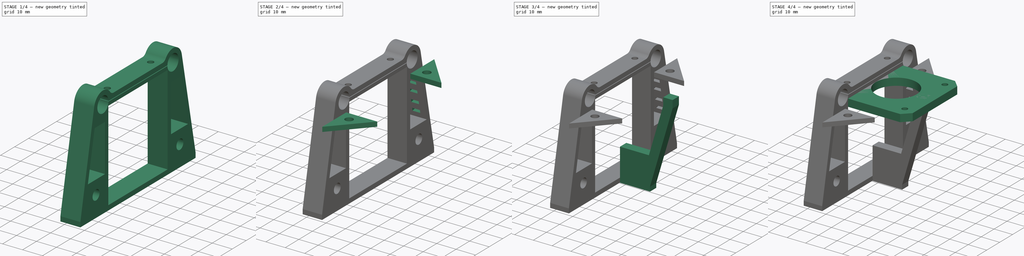
[diagram: build sequence overview — one tinted view per stage of 4, left to right]
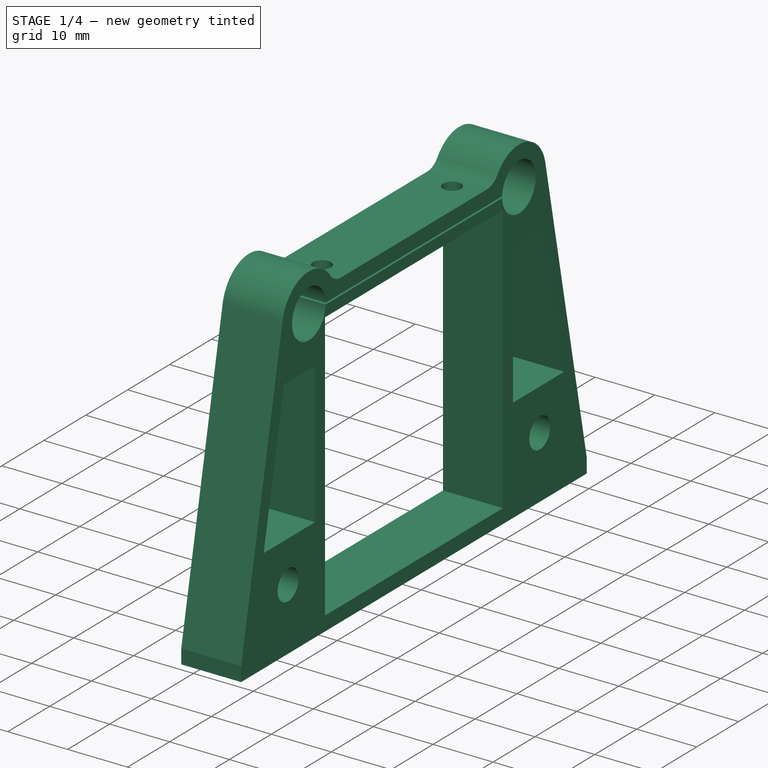
[diagram: stage 1 of 4 — iso view after this stage's code; geometry added in this stage tinted green]
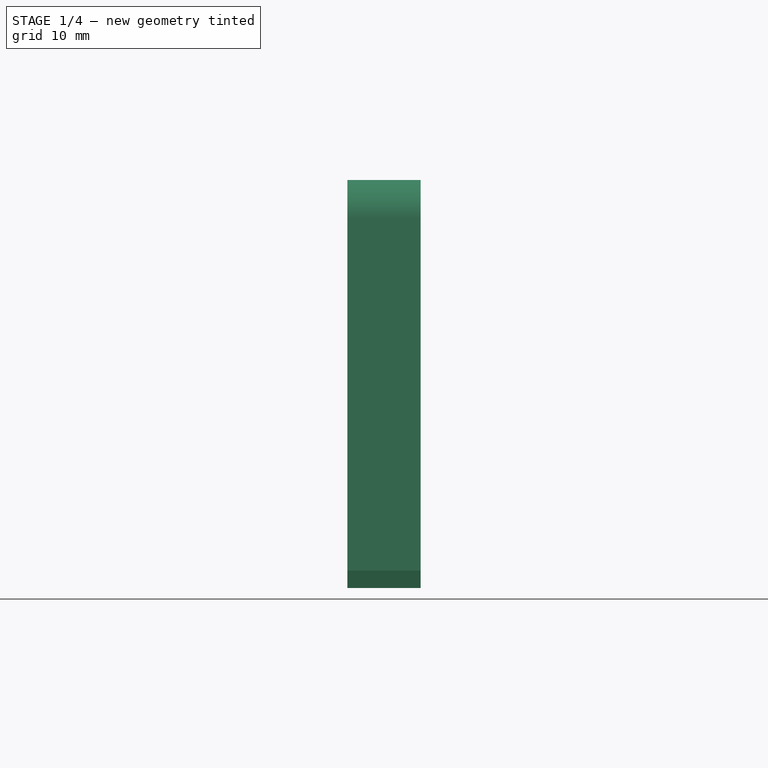
[diagram: stage 1 of 4 — front view after this stage's code; geometry added in this stage tinted green]
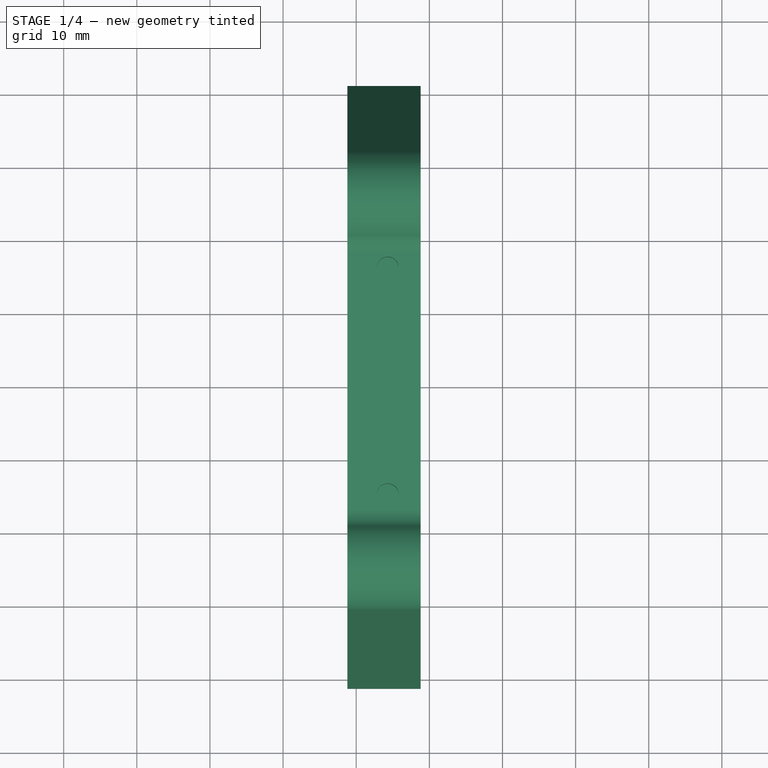
[diagram: stage 1 of 4 — top view after this stage's code; geometry added in this stage tinted green]
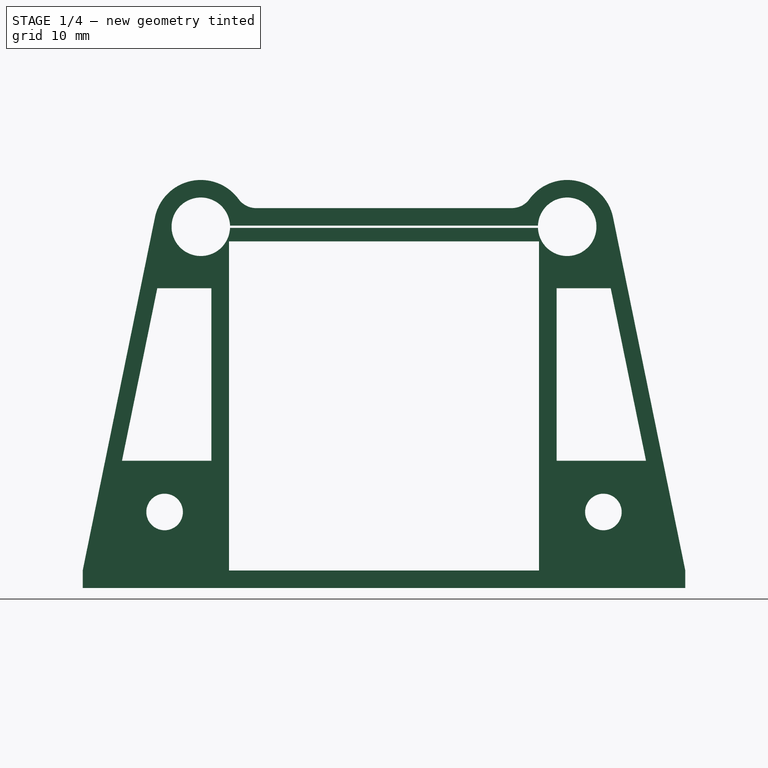
[diagram: stage 1 of 4 — right view after this stage's code; geometry added in this stage tinted green]
FCSTD DOCUMENT  (FreeCAD 0.19R24291 (Git))
Label: plotter-motor-holder-right
License: All rights reserved
LicenseURL: http://en.wikipedia.org/wiki/All_rights_reserved
objects: Sketcher::SketchObject×9, PartDesign::Pad×6, PartDesign::Body×6, PartDesign::Pocket×3, Spreadsheet::Sheet×1, PartDesign::Chamfer×1, PartDesign::Fillet×1, App::Part×1
note: 37 computed .brp shape members not serialized (recipe doc carries the construction recipe); baked Part::Feature solids carry a one-line shape summary decoded from their .brp

FEATURE [PartDesign::Body] Body001  label="MotorPlate"
  Group = -> [Sketch015,Pad004,Chamfer003,Sketch018,Pocket010]
  Origin = -> Origin003
  Tip = -> Pocket010
FEATURE [Sketcher::SketchObject] Sketch019
  FullyConstrained = true
  MapMode = 5
  Placement = pos=(-21.2,0,0) rot=(0.57735,-0.57735,-0.57735;2.0944rad)
  expr: Constraints[15] = Spreadsheet.nema_l / 2 + 0.2
  expr: Constraints[10] = (Spreadsheet.core_length - Spreadsheet.lm8uu_d) / 2 - 2.4
  sketch-geometry (27):
    g0: ArcOfCircle CenterX=-25.05 CenterY=6 CenterZ=0 NormalX=0 NormalY=0 NormalZ=1 AngleXU=0 Radius=6.4 StartAngle=0.409813 EndAngle=2.93975
    g1: ArcOfCircle CenterX=25.05 CenterY=6 CenterZ=0 NormalX=0 NormalY=0 NormalZ=1 AngleXU=0 Radius=6.4 StartAngle=0.201839 EndAngle=2.73178
    g2: LineSegment StartX=-19.1799 StartY=8.55 StartZ=0 EndX=19.1799 EndY=8.55 EndZ=0
    g3: LineSegment StartX=-31.3201 StartY=7.28302 StartZ=0 EndX=-41.2 EndY=-41 EndZ=0
    g4: LineSegment StartX=-41.2 StartY=-43.4 StartZ=0 EndX=41.2 EndY=-43.4 EndZ=0
    g5: LineSegment StartX=-21.2 StartY=-41 StartZ=0 EndX=-21.2 EndY=4 EndZ=0
    g6: LineSegment StartX=21.2 StartY=4 StartZ=0 EndX=21.2 EndY=-41 EndZ=0
    g7: LineSegment StartX=41.2 StartY=-41 StartZ=0 EndX=31.3201 EndY=7.28302 EndZ=0
    g8: ArcOfCircle CenterX=25.05 CenterY=6 CenterZ=0 NormalX=0 NormalY=0 NormalZ=1 AngleXU=0 Radius=4 StartAngle=3.1791 EndAngle=9.38727
    g9: ArcOfCircle CenterX=-25.05 CenterY=6 CenterZ=0 NormalX=0 NormalY=0 NormalZ=1 AngleXU=0 Radius=4 StartAngle=0.0375088 EndAngle=6.24568
    g10: Circle CenterX=-30 CenterY=-33 CenterZ=0 NormalX=0 NormalY=0 NormalZ=1 AngleXU=0 Radius=2.5
    g11: Circle CenterX=30 CenterY=-33 CenterZ=0 NormalX=0 NormalY=0 NormalZ=1 AngleXU=0 Radius=2.5
    g12: LineSegment StartX=-21.2 StartY=4 StartZ=0 EndX=21.2 EndY=4 EndZ=0
    g13: LineSegment StartX=-21.0528 StartY=5.85 StartZ=0 EndX=21.0528 EndY=5.85 EndZ=0
    g14: LineSegment StartX=-21.0528 StartY=6.15 StartZ=0 EndX=21.0528 EndY=6.15 EndZ=0
    g15: LineSegment StartX=-31.0015 StartY=-2.4 StartZ=0 EndX=-23.6 EndY=-2.4 EndZ=0
    g16: LineSegment StartX=-23.6 StartY=-2.4 StartZ=0 EndX=-23.6 EndY=-26 EndZ=0
    g17: LineSegment StartX=-23.6 StartY=-26 StartZ=0 EndX=-35.8306 EndY=-26 EndZ=0
    g18: LineSegment StartX=-35.8306 StartY=-26 StartZ=0 EndX=-31.0015 EndY=-2.4 EndZ=0
    g19: LineSegment StartX=23.6 StartY=-2.4 StartZ=0 EndX=23.6 EndY=-26 EndZ=0
    g20: LineSegment StartX=23.6 StartY=-26 StartZ=0 EndX=35.8306 EndY=-26 EndZ=0
    g21: LineSegment StartX=35.8306 StartY=-26 StartZ=0 EndX=31.0015 EndY=-2.4 EndZ=0
    g22: LineSegment StartX=31.0015 StartY=-2.4 StartZ=0 EndX=23.6 EndY=-2.4 EndZ=0
    g23: GeomPoint X=38.1306 Y=-26 Z=0
    g24: LineSegment StartX=-21.2 StartY=-41 StartZ=0 EndX=21.2 EndY=-41 EndZ=0
    g25: LineSegment StartX=41.2 StartY=-41 StartZ=0 EndX=41.2 EndY=-43.4 EndZ=0
    g26: LineSegment StartX=-41.2 StartY=-41 StartZ=0 EndX=-41.2 EndY=-43.4 EndZ=0
  constraints (73):
    c: Coincident(g2,g0)
    c: Coincident(g2,g1)
    c: Tangent(g0,g3) = -1.5708
    c: Vertical(g6)
    c: Coincident(g7,g1)
    c: Coincident(g8,g1)
    c: Coincident(g9,g0)
    c: Equal(g8,g9)
    c: Diameter(g9) = 8
    c: Diameter(g0) = 12.8
    c: DistanceX(g0,g-1) = 25.05
    c: Symmetric(g1,g0,g-2)
    c: DistanceY(g-1,g0) = 6
    c: Symmetric(g0,g1,g-2)
    c: Symmetric(g5,g6,g-2)
    c: DistanceX(g5,g-1) = 21.2
    c: DistanceY(g-1,g5) = 4
    c: Symmetric(g3,g7,g-2)
    c: DistanceY(g5,g5) = 45
    c: Horizontal(g0,g1)
    c: Symmetric(g10,g11,g-2)
    c: Diameter(g10) = 5
    c: Equal(g10,g11)
    c: DistanceY(g6,g11) = 8
    c: Coincident(g12,g5)
    c: Coincident(g12,g6)
    c: Coincident(g13,g9)
    c: Coincident(g13,g8)
    c: Horizontal(g13)
    c: Coincident(g14,g9)
    c: Coincident(g14,g8)
    c: Horizontal(g14)
    c: DistanceY(g9,g9) = 0.3
    c: Vertical(g9,g9)
    c: Horizontal(g15)
    c: Coincident(g15,g16)
    c: Vertical(g16)
    c: Coincident(g16,g17)
    c: Horizontal(g17)
    c: Coincident(g17,g18)
    c: Coincident(g18,g15)
    c: Coincident(g19,g20)
    c: Coincident(g20,g21)
    c: Coincident(g21,g22)
    c: Coincident(g22,g19)
    c: Symmetric(g15,g19,g-2)
    c: Horizontal(g22)
    c: Parallel(g21,g7)
    c: Parallel(g3,g18)
    c: Symmetric(g16,g19,g-2)
    c: Symmetric(g20,g17,g-2)
    c: PointOnObject(g23,g7)
    c: Horizontal(g20,g23)
    c: DistanceX(g20,g23) = 2.3
    c: DistanceY(g15,g5) = 6.4
    c: DistanceY(g9,g0) = 2.4
    c: Coincident(g24,g5)
    c: Coincident(g24,g6)
    c: Horizontal(g24)
    c: Equal(g24,g12)
    c: DistanceX(g4,g4) = 82.4
    c: DistanceY(g4,g6) = 2.4
    c: DistanceX(g10,g11) = 60
    c: DistanceY(g6,g19) = 15
    c: DistanceX(g6,g19) = 2.4
    c: Coincident(g25,g7)
    c: Coincident(g25,g4)
    c: Vertical(g25)
    c: Coincident(g26,g3)
    c: Coincident(g26,g4)
    c: Vertical(g26)
    c: Equal(g26,g25)
    c: DistanceY(g26,g26) = 2.4
FEATURE [PartDesign::Pad] Pad006
  Direction = (1,1,1)
  Length = 10
  Length2 = 100
  Placement = pos=(-21.2,0,0) rot=(0.57735,-0.57735,-0.57735;2.0944rad)
  Profile = -> Sketch019
  Reversed = true
  Type = 0
FEATURE [Sketcher::SketchObject] Sketch020
  FullyConstrained = true
  MapMode = 5
  Support = -> [XY_Plane004]
  sketch-geometry (2):
    g0: Circle CenterX=-15.7 CenterY=15.5 CenterZ=0 NormalX=0 NormalY=0 NormalZ=1 AngleXU=0 Radius=1.5
    g1: Circle CenterX=-15.7 CenterY=-15.5 CenterZ=0 NormalX=0 NormalY=0 NormalZ=1 AngleXU=0 Radius=1.5
  constraints (5):
    c: Diameter(g0) = 3
    c: Equal(g0,g1)
    c: Symmetric(g1,g0,g-1)
    c: DistanceY(g1,g0) = 31
    c: DistanceX(g0,g-1) = 15.7
FEATURE [PartDesign::Pocket] Pocket011
  BaseFeature = -> Pad006
  Length = 5
  Length2 = 100
  Placement = pos=(-21.2,0,0) rot=(0.57735,-0.57735,-0.57735;2.0944rad)
  Profile = -> Sketch020
  Reversed = true
  Type = 1
FEATURE [PartDesign::Body] Body006  label="LeftMountingPlate"
  Group = -> [Sketch024,Pad010]
  Origin = -> Origin008
  Placement = pos=(0,0,-41) rot=(0,0,1;0rad)
  Tip = -> Pad010
FEATURE [PartDesign::Fillet] Fillet004
  Base = -> Pocket011 [Edge8,Edge58]
  BaseFeature = -> Pocket011
  Placement = pos=(-21.2,0,0) rot=(0.57735,-0.57735,-0.57735;2.0944rad)
  Radius = 3
  SupportTransform = false
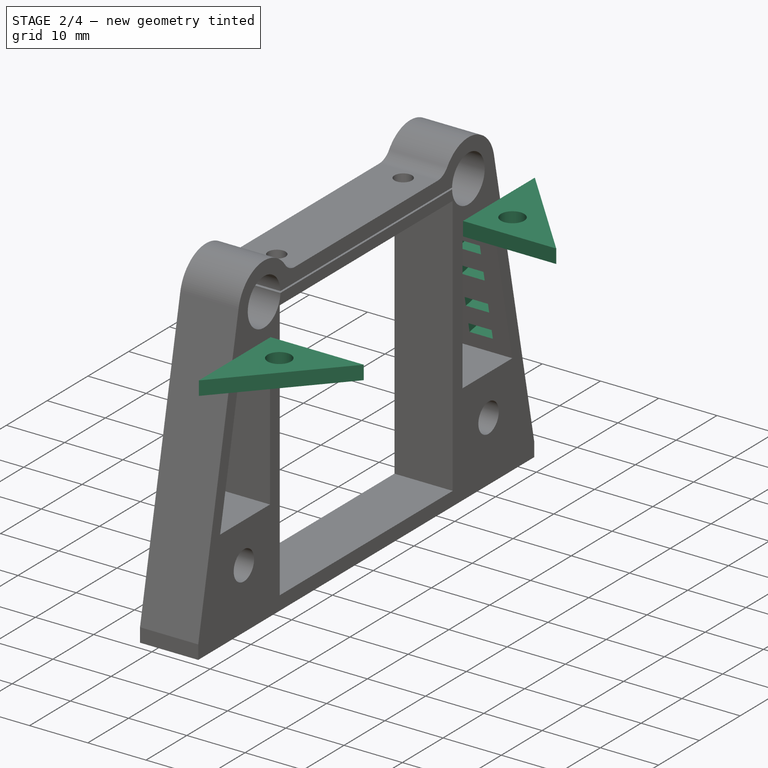
[diagram: stage 2 of 4 — iso view after this stage's code; geometry added in this stage tinted green]
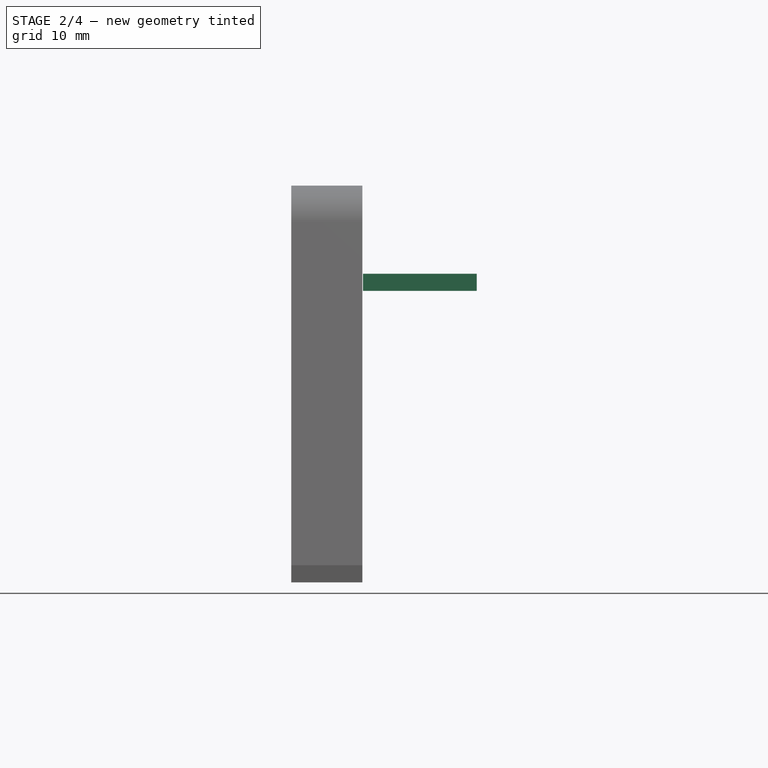
[diagram: stage 2 of 4 — front view after this stage's code; geometry added in this stage tinted green]
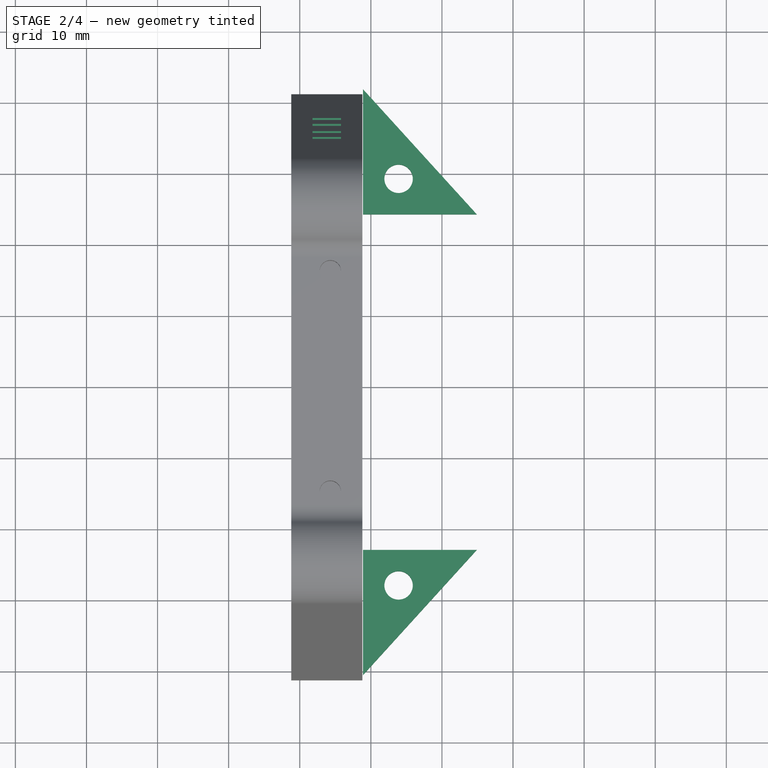
[diagram: stage 2 of 4 — top view after this stage's code; geometry added in this stage tinted green]
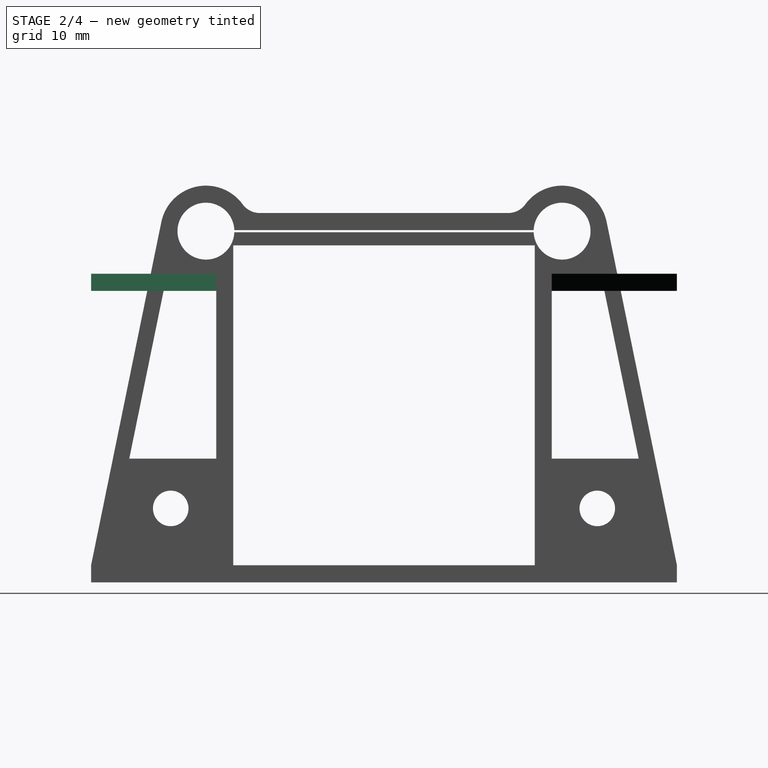
[diagram: stage 2 of 4 — right view after this stage's code; geometry added in this stage tinted green]
FEATURE [PartDesign::Body] Body004  label="LeftSupport"
  Group = -> [Sketch022,Pad008]
  Origin = -> Origin006
  Placement = pos=(0,21.2,0) rot=(0,0,1;0rad)
  Tip = -> Pad008
FEATURE [Sketcher::SketchObject] Sketch023
  FullyConstrained = true
  MapMode = 5
  Support = -> [XY_Plane007]
  expr: Constraints[8] = 42.4 / 2 + 2.4
  expr: Constraints[6] = 20 - 2.4
  sketch-geometry (4):
    g0: LineSegment StartX=-11.1 StartY=-23.6 StartZ=0 EndX=-11.1 EndY=-41.2 EndZ=0
    g1: LineSegment StartX=-11.1 StartY=-41.2 StartZ=0 EndX=4.9 EndY=-23.6 EndZ=0
    g2: LineSegment StartX=4.9 StartY=-23.6 StartZ=0 EndX=-11.1 EndY=-23.6 EndZ=0
    g3: Circle CenterX=-6.1 CenterY=-28.6 CenterZ=0 NormalX=0 NormalY=0 NormalZ=1 AngleXU=0 Radius=2
  constraints (12):
    c: Vertical(g0)
    c: Coincident(g0,g1)
    c: Coincident(g1,g2)
    c: Coincident(g2,g0)
    c: Horizontal(g2)
    c: DistanceX(g2,g2) = 16
    c: DistanceY(g0,g0) = 17.6
    c: DistanceX(g0,g-1) = 11.1
    c: DistanceY(g0,g-1) = 23.6
    c: Diameter(g3) = 4
    c: DistanceX(g0,g3) = 5
    c: DistanceY(g3,g1) = 5
FEATURE [PartDesign::Pad] Pad009
  Direction = (1,1,1)
  Length = 2.4
  Length2 = 100
  Profile = -> Sketch023
  Reversed = true
  Type = 0
FEATURE [PartDesign::Body] Body005  label="RightMountingPlate"
  Group = -> [Sketch023,Pad009]
  Origin = -> Origin007
  Placement = pos=(0,0,-41) rot=(0,0,1;0rad)
  Tip = -> Pad009
FEATURE [Sketcher::SketchObject] Sketch024
  FullyConstrained = true
  MapMode = 5
  Support = -> [XY_Plane008]
  sketch-geometry (4):
    g0: LineSegment StartX=-11.1 StartY=41.2 StartZ=0 EndX=-11.1 EndY=23.6 EndZ=0
    g1: LineSegment StartX=-11.1 StartY=23.6 StartZ=0 EndX=4.9 EndY=23.6 EndZ=0
    g2: LineSegment StartX=4.9 StartY=23.6 StartZ=0 EndX=-11.1 EndY=41.2 EndZ=0
    g3: Circle CenterX=-6.1 CenterY=28.6 CenterZ=0 NormalX=0 NormalY=0 NormalZ=1 AngleXU=0 Radius=2
  constraints (12):
    c: Vertical(g0)
    c: Coincident(g0,g1)
    c: Horizontal(g1)
    c: Coincident(g1,g2)
    c: Coincident(g2,g0)
    c: DistanceX(g1,g1) = 16
    c: DistanceY(g0,g0) = 17.6
    c: DistanceX(g0,g-1) = 11.1
    c: DistanceY(g-1,g0) = 23.6
    c: Diameter(g3) = 4
    c: DistanceY(g0,g3) = 5
    c: DistanceX(g0,g3) = 5
FEATURE [PartDesign::Pad] Pad010
  Direction = (1,1,1)
  Length = 2.4
  Length2 = 100
  Profile = -> Sketch024
  Reversed = true
  Type = 0
FEATURE [Sketcher::SketchObject] Sketch
  ExternalGeometry = -> [Fillet004]
  FullyConstrained = true
  MapMode = 5
  Placement = pos=(-21.2,31.4918,6.44401) rot=(-0.53441,0.53441,0.654837;1.98206rad)
  Support = -> [Fillet004]
  sketch-geometry (18):
    g0: LineSegment StartX=28.7033 StartY=-7 StartZ=0 EndX=30.2033 EndY=-7 EndZ=0
    g1: LineSegment StartX=30.2033 StartY=-7 StartZ=0 EndX=30.2033 EndY=-3 EndZ=0
    g2: LineSegment StartX=30.2033 StartY=-3 StartZ=0 EndX=28.7033 EndY=-3 EndZ=0
    g3: LineSegment StartX=28.7033 StartY=-3 StartZ=0 EndX=28.7033 EndY=-7 EndZ=0
    g4: LineSegment StartX=24.2033 StartY=-7 StartZ=0 EndX=25.7033 EndY=-7 EndZ=0
    g5: LineSegment StartX=25.7033 StartY=-7 StartZ=0 EndX=25.7033 EndY=-3 EndZ=0
    g6: LineSegment StartX=25.7033 StartY=-3 StartZ=0 EndX=24.2033 EndY=-3 EndZ=0
    g7: LineSegment StartX=24.2033 StartY=-3 StartZ=0 EndX=24.2033 EndY=-7 EndZ=0
    g8: LineSegment StartX=18.7033 StartY=-7 StartZ=0 EndX=20.2033 EndY=-7 EndZ=0
    g9: LineSegment StartX=20.2033 StartY=-7 StartZ=0 EndX=20.2033 EndY=-3 EndZ=0
    g10: LineSegment StartX=20.2033 StartY=-3 StartZ=0 EndX=18.7033 EndY=-3 EndZ=0
    g11: LineSegment StartX=18.7033 StartY=-3 StartZ=0 EndX=18.7033 EndY=-7 EndZ=0
    g12: LineSegment StartX=14.2033 StartY=-7 StartZ=0 EndX=15.7033 EndY=-7 EndZ=0
    g13: LineSegment StartX=15.7033 StartY=-7 StartZ=0 EndX=15.7033 EndY=-3 EndZ=0
    g14: LineSegment StartX=15.7033 StartY=-3 StartZ=0 EndX=14.2033 EndY=-3 EndZ=0
    g15: LineSegment StartX=14.2033 StartY=-3 StartZ=0 EndX=14.2033 EndY=-7 EndZ=0
    g16: LineSegment StartX=30.2033 StartY=-3 StartZ=0 EndX=30.2033 EndY=0 EndZ=0
    g17: LineSegment StartX=30.2033 StartY=-7 StartZ=0 EndX=30.2033 EndY=-10 EndZ=0
  constraints (52):
    c: Coincident(g0,g1)
    c: Coincident(g1,g2)
    c: Coincident(g2,g3)
    c: Coincident(g3,g0)
    c: Horizontal(g0)
    c: Horizontal(g2)
    c: Vertical(g1)
    c: Vertical(g3)
    c: Coincident(g4,g5)
    c: Coincident(g5,g6)
    c: Coincident(g6,g7)
    c: Coincident(g7,g4)
    c: Horizontal(g4)
    c: Horizontal(g6)
    c: Vertical(g5)
    c: Vertical(g7)
    c: Coincident(g8,g9)
    c: Coincident(g9,g10)
    c: Coincident(g10,g11)
    c: Coincident(g11,g8)
    c: Horizontal(g8)
    c: Horizontal(g10)
    c: Vertical(g9)
    c: Vertical(g11)
    c: Coincident(g12,g13)
    c: Coincident(g13,g14)
    c: Coincident(g14,g15)
    c: Coincident(g15,g12)
    c: Horizontal(g12)
    c: Horizontal(g14)
    c: Vertical(g13)
    c: Vertical(g15)
    c: Vertical(g0,g-4)
    c: Coincident(g16,g1)
    c: Coincident(g16,g-3)
    c: Coincident(g17,g0)
    c: Coincident(g17,g-4)
    c: DistanceY(g1,g1) = 4
    c: Equal(g1,g5)
    c: Equal(g5,g9)
    c: Equal(g9,g13)
    c: DistanceX(g2,g2) = 1.5
    c: Equal(g2,g6)
    c: Equal(g6,g10)
    c: Equal(g10,g14)
    c: Horizontal(g2,g5)
    c: Horizontal(g6,g9)
    c: Horizontal(g10,g13)
    c: DistanceX(g4,g0) = 3
    c: DistanceX(g12,g8) = 3
    c: DistanceX(g8,g4) = 4
    c: Equal(g16,g17)
FEATURE [PartDesign::Pocket] Pocket
  BaseFeature = -> Fillet004
  Length = 5
  Length2 = 100
  Placement = pos=(-21.2,0,0) rot=(0.57735,-0.57735,-0.57735;2.0944rad)
  Profile = -> Sketch
  Type = 2
FEATURE [PartDesign::Body] Body002  label="RodHolder"
  Group = -> [Sketch019,Pad006,Sketch020,Pocket011,Fillet004,Sketch,Pocket]
  Origin = -> Origin004
  Placement = pos=(0.2,0,0) rot=(0,0,1;0rad)
  Tip = -> Pocket
FEATURE [App::Part] Part001  label="MotorHolderRight"
  Group = -> [Body001,Body002,Body003,Body004,Body005,Body006]
  Origin = -> Origin002
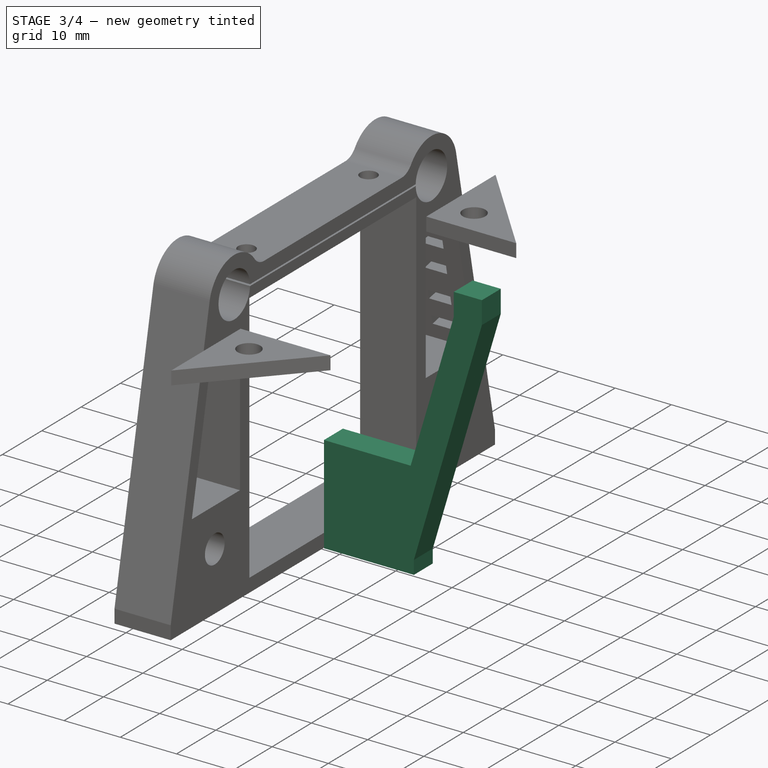
[diagram: stage 3 of 4 — iso view after this stage's code; geometry added in this stage tinted green]
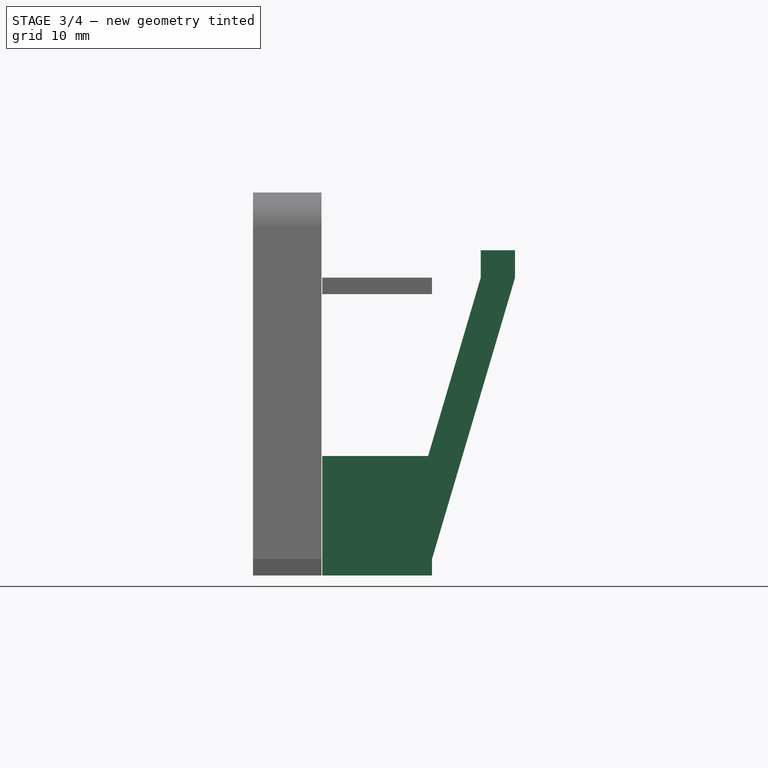
[diagram: stage 3 of 4 — front view after this stage's code; geometry added in this stage tinted green]
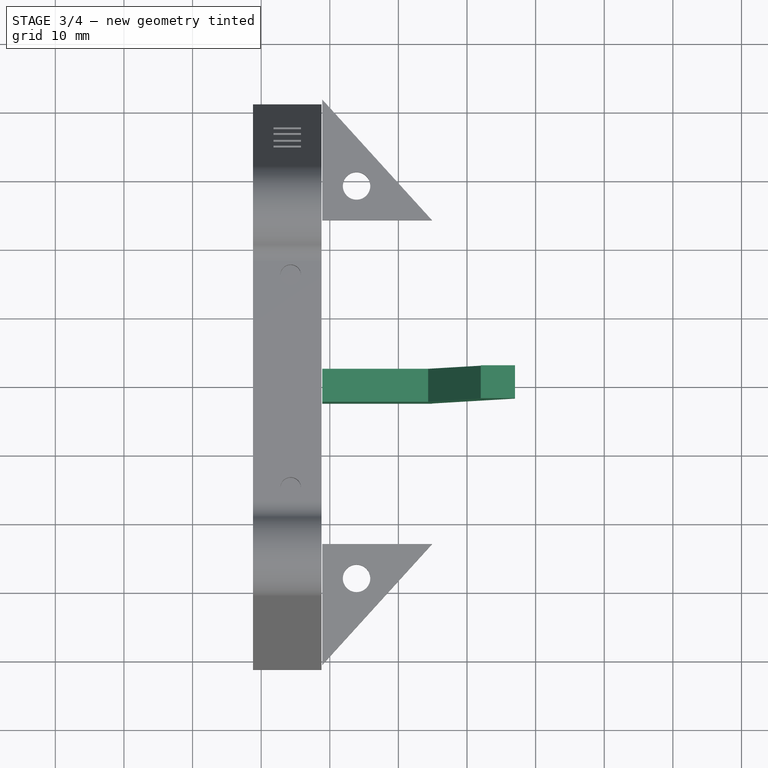
[diagram: stage 3 of 4 — top view after this stage's code; geometry added in this stage tinted green]
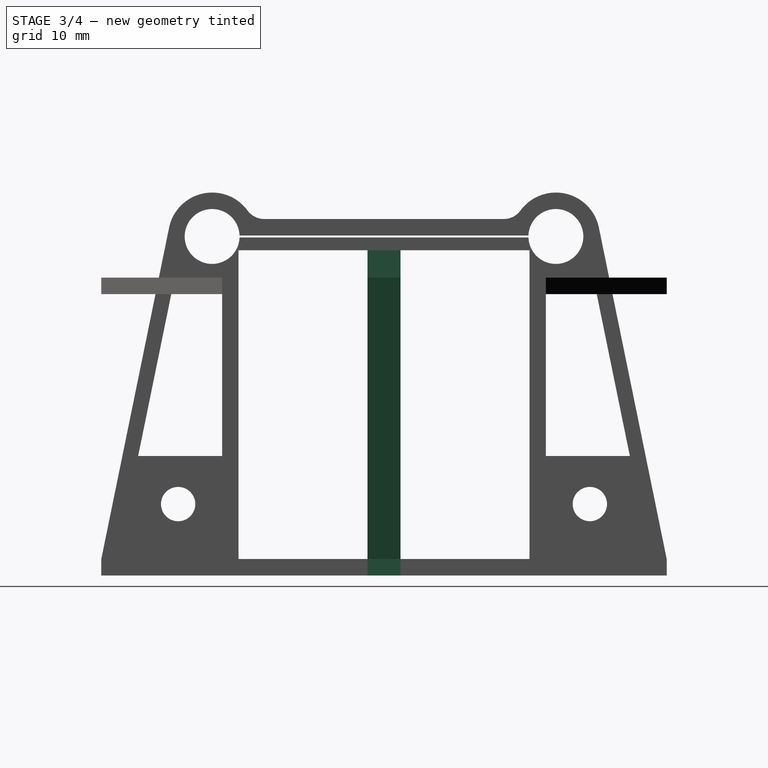
[diagram: stage 3 of 4 — right view after this stage's code; geometry added in this stage tinted green]
FEATURE [Sketcher::SketchObject] Sketch021
  FullyConstrained = true
  MapMode = 5
  Placement = pos=(0,0,0) rot=(1,0,0;1.5708rad)
  Support = -> [XZ_Plane005]
  expr: Constraints[18] = 42.4 / 2 - 10.1
  expr: Constraints[17] = Spreadsheet.nema_l / 2 - 4
  expr: Constraints[16] = 15 + 2.4
  sketch-geometry (9):
    g0: LineSegment StartX=-11.1 StartY=-43.4 StartZ=0 EndX=4.9 EndY=-43.4 EndZ=0
    g1: LineSegment StartX=17 StartY=0 StartZ=0 EndX=17 EndY=4 EndZ=0
    g2: LineSegment StartX=17 StartY=4 StartZ=0 EndX=12 EndY=4 EndZ=0
    g3: LineSegment StartX=12 StartY=4 StartZ=0 EndX=12 EndY=0 EndZ=0
    g4: LineSegment StartX=12 StartY=0 StartZ=0 EndX=4.32683 EndY=-26 EndZ=0
    g5: LineSegment StartX=4.32683 StartY=-26 StartZ=0 EndX=-11.1 EndY=-26 EndZ=0
    g6: LineSegment StartX=-11.1 StartY=-26 StartZ=0 EndX=-11.1 EndY=-43.4 EndZ=0
    g7: LineSegment StartX=17 StartY=0 StartZ=0 EndX=4.9 EndY=-41 EndZ=0
    g8: LineSegment StartX=4.9 StartY=-43.4 StartZ=0 EndX=4.9 EndY=-41 EndZ=0
  constraints (27):
    c: Horizontal(g0)
    c: PointOnObject(g1,g-1)
    c: Coincident(g1,g2)
    c: Coincident(g2,g3)
    c: PointOnObject(g3,g-1)
    c: Vertical(g3)
    c: Coincident(g3,g4)
    c: Coincident(g4,g5)
    c: Horizontal(g5)
    c: Coincident(g5,g6)
    c: Coincident(g6,g0)
    c: Vertical(g6)
    c: Vertical(g1)
    c: Horizontal(g2)
    c: DistanceX(g2,g2) = 5
    c: DistanceX(g0,g0) = 16
    c: DistanceY(g6,g6) = 17.4
    c: DistanceX(g-1,g1) = 17
    c: DistanceX(g0,g-1) = 11.1
    c: DistanceY(g0,g-1) = 43.4
    c: DistanceY(g-1,g1) = 4
    c: Coincident(g7,g1)
    c: Coincident(g8,g0)
    c: Coincident(g8,g7)
    c: Vertical(g8)
    c: Parallel(g4,g7)
    c: DistanceY(g8,g8) = 2.4
FEATURE [PartDesign::Pad] Pad007
  Direction = (1,1,1)
  Length = 2.4
  Length2 = 100
  Placement = pos=(0,0,0) rot=(1,0,0;1.5708rad)
  Profile = -> Sketch021
  Type = 0
FEATURE [PartDesign::Body] Body003  label="RightSupport"
  Group = -> [Sketch021,Pad007]
  Origin = -> Origin005
  Placement = pos=(0,-21.2,0) rot=(0,0,1;0rad)
  Tip = -> Pad007
FEATURE [Sketcher::SketchObject] Sketch022
  FullyConstrained = true
  MapMode = 5
  Placement = pos=(0,0,0) rot=(1,0,0;1.5708rad)
  Support = -> [XZ_Plane006]
  expr: Constraints[19] = Spreadsheet.nema_l / 2 - 4
  sketch-geometry (9):
    g0: LineSegment StartX=12 StartY=4 StartZ=0 EndX=17 EndY=4 EndZ=0
    g1: LineSegment StartX=17 StartY=4 StartZ=0 EndX=17 EndY=0 EndZ=0
    g2: LineSegment StartX=17 StartY=0 StartZ=0 EndX=4.9 EndY=-41 EndZ=0
    g3: LineSegment StartX=4.9 StartY=-43.4 StartZ=0 EndX=-11.1 EndY=-43.4 EndZ=0
    g4: LineSegment StartX=-11.1 StartY=-43.4 StartZ=0 EndX=-11.1 EndY=-26 EndZ=0
    g5: LineSegment StartX=-11.1 StartY=-26 StartZ=0 EndX=4.32683 EndY=-26 EndZ=0
    g6: LineSegment StartX=4.32683 StartY=-26 StartZ=0 EndX=12 EndY=0 EndZ=0
    g7: LineSegment StartX=12 StartY=0 StartZ=0 EndX=12 EndY=4 EndZ=0
    g8: LineSegment StartX=4.9 StartY=-41 StartZ=0 EndX=4.9 EndY=-43.4 EndZ=0
  constraints (27):
    c: Horizontal(g0)
    c: Coincident(g0,g1)
    c: Vertical(g1)
    c: Coincident(g1,g2)
    c: Horizontal(g3)
    c: Coincident(g3,g4)
    c: Vertical(g4)
    c: Coincident(g4,g5)
    c: Horizontal(g5)
    c: Coincident(g5,g6)
    c: PointOnObject(g6,g-1)
    c: Coincident(g6,g7)
    c: Coincident(g7,g0)
    c: Vertical(g7)
    c: Parallel(g6,g2)
    c: DistanceX(g0,g0) = 5
    c: DistanceX(g3,g3) = 16
    c: DistanceY(g4,g4) = 17.4
    c: DistanceY(g1,g1) = 4
    c: DistanceX(g-1,g0) = 17
    c: DistanceX(g4,g-1) = 11.1
    c: DistanceY(g3,g-1) = 43.4
    c: Horizontal(g1,g6)
    c: Coincident(g8,g2)
    c: Coincident(g8,g3)
    c: Vertical(g8)
    c: DistanceY(g8,g8) = 2.4
FEATURE [PartDesign::Pad] Pad008
  Direction = (1,1,1)
  Length = 2.4
  Length2 = 100
  Placement = pos=(0,0,0) rot=(1,0,0;1.5708rad)
  Profile = -> Sketch022
  Reversed = true
  Type = 0
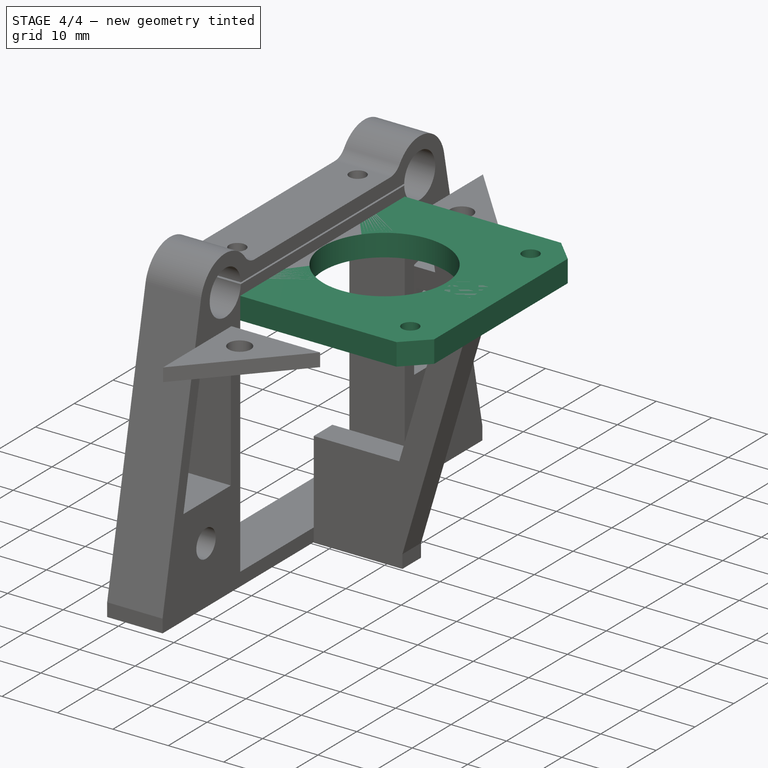
[diagram: stage 4 of 4 — iso view after this stage's code; geometry added in this stage tinted green]
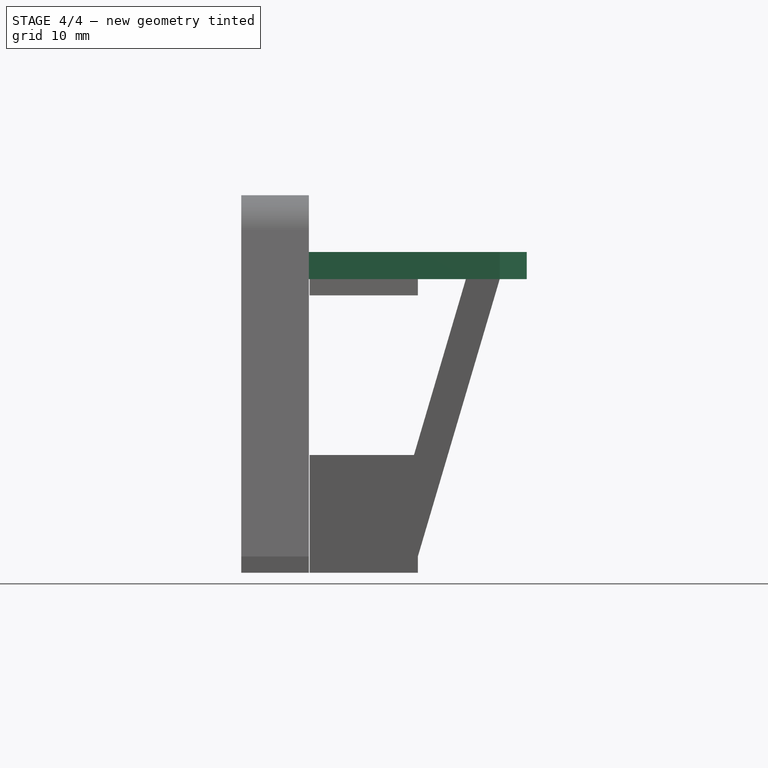
[diagram: stage 4 of 4 — front view after this stage's code; geometry added in this stage tinted green]
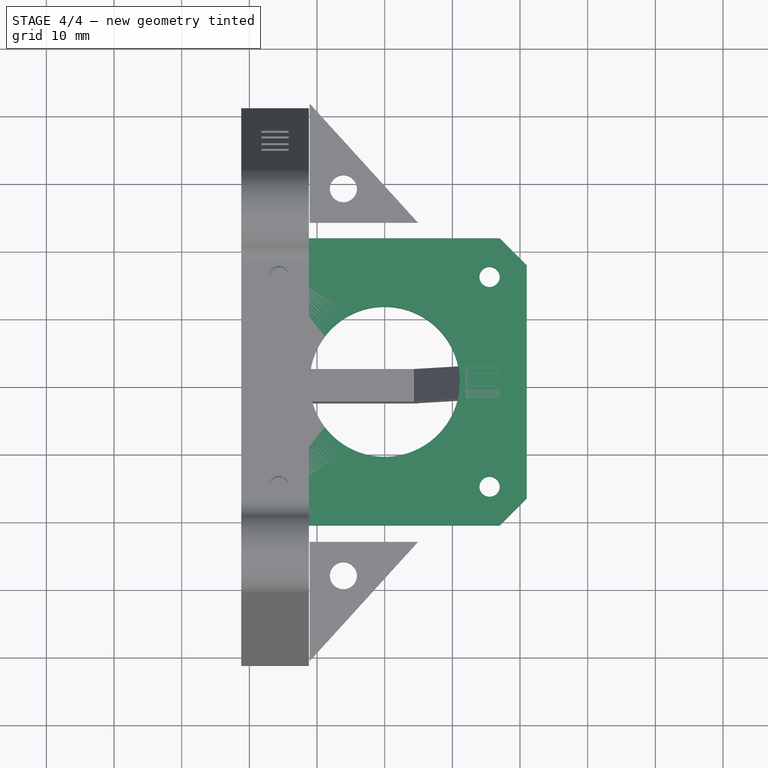
[diagram: stage 4 of 4 — top view after this stage's code; geometry added in this stage tinted green]
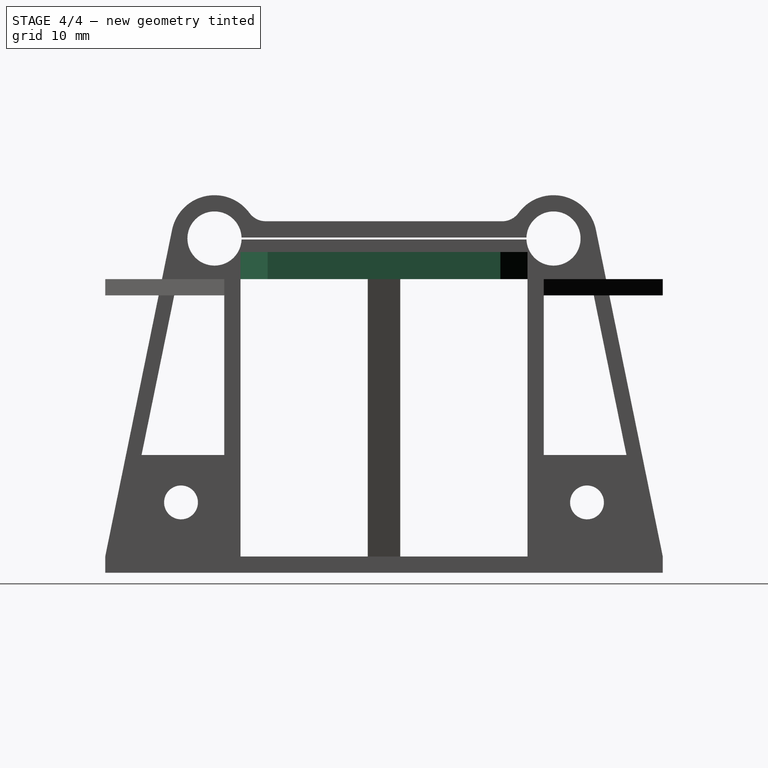
[diagram: stage 4 of 4 — right view after this stage's code; geometry added in this stage tinted green]
FEATURE [Spreadsheet::Sheet] Spreadsheet  label="Specs"
  cells = A5=Core length; B5(core_length)=70; A6=Core heigth; B6(core_height)=22; A7=Core inner length; B7(core_inner_length)=36; A9=Belt hole heigth; B9(belt_hole_height)=9.199999999999999; A10=Belt hole width; B10(belt_hole_width)=16; A12=LM8UU Diameter; B12(lm8uu_d)=15.1; A13=Rod Diameter; B13(rod_d)=8.4; A14=LM8UU Legth; B14(lm8uu_l)=24; A16=nema_l; B16(nema_l)=42; A17=nema_hole_d; B17(nema_hole_d)=3; A18=nema_hole_pos; B18(nema_hole_pos)==31 / 2
FEATURE [Sketcher::SketchObject] Sketch015
  FullyConstrained = true
  MapMode = 5
  Support = -> [XY_Plane003]
  expr: Constraints[9] = Spreadsheet.nema_l
  sketch-geometry (4):
    g0: LineSegment StartX=-21 StartY=21.2 StartZ=0 EndX=21 EndY=21.2 EndZ=0
    g1: LineSegment StartX=21 StartY=21.2 StartZ=0 EndX=21 EndY=-21.2 EndZ=0
    g2: LineSegment StartX=21 StartY=-21.2 StartZ=0 EndX=-21 EndY=-21.2 EndZ=0
    g3: LineSegment StartX=-21 StartY=-21.2 StartZ=0 EndX=-21 EndY=21.2 EndZ=0
  constraints (11):
    c: Coincident(g0,g1)
    c: Coincident(g1,g2)
    c: Coincident(g2,g3)
    c: Coincident(g3,g0)
    c: Horizontal(g0)
    c: Horizontal(g2)
    c: Vertical(g1)
    c: Vertical(g3)
    c: Symmetric(g0,g2,g-1)
    c: DistanceX(g0,g0) = 42
    c: DistanceY(g1,g1) = 42.4
FEATURE [PartDesign::Pad] Pad004
  Direction = (1,1,1)
  Length = 4
  Length2 = 100
  Profile = -> Sketch015
  Type = 0
FEATURE [PartDesign::Chamfer] Chamfer003
  Angle = 45
  Base = -> Pad004 [Edge5,Edge2]
  BaseFeature = -> Pad004
  ChamferType = 0
  FlipDirection = false
  Size = 4
  Size2 = 1
  SupportTransform = false
FEATURE [Sketcher::SketchObject] Sketch018
  FullyConstrained = true
  MapMode = 5
  Placement = pos=(0,0,0) rot=(1,0,0;3.14159rad)
  sketch-geometry (5):
    g0: Circle CenterX=0 CenterY=0 CenterZ=0 NormalX=0 NormalY=0 NormalZ=1 AngleXU=0 Radius=11.1
    g1: Circle CenterX=-15.5 CenterY=15.5 CenterZ=0 NormalX=0 NormalY=0 NormalZ=1 AngleXU=0 Radius=1.5
    g2: Circle CenterX=15.5 CenterY=15.5 CenterZ=0 NormalX=0 NormalY=0 NormalZ=1 AngleXU=0 Radius=1.5
    g3: Circle CenterX=-15.5 CenterY=-15.5 CenterZ=0 NormalX=0 NormalY=0 NormalZ=1 AngleXU=0 Radius=1.5
    g4: Circle CenterX=15.5 CenterY=-15.5 CenterZ=0 NormalX=0 NormalY=0 NormalZ=1 AngleXU=0 Radius=1.5
  constraints (11):
    c: Diameter(g0) = 22.2
    c: Coincident(g0,g-1)
    c: Symmetric(g1,g4,g0)
    c: Symmetric(g2,g3,g0)
    c: Symmetric(g1,g2,g-2)
    c: Diameter(g1) = 3
    c: Equal(g1,g2)
    c: Equal(g1,g4)
    c: Equal(g1,g3)
    c: DistanceX(g1,g2) = 31
    c: DistanceY(g3,g1) = 31
FEATURE [PartDesign::Pocket] Pocket010
  BaseFeature = -> Chamfer003
  Length = 5
  Length2 = 100
  Profile = -> Sketch018
  Type = 1
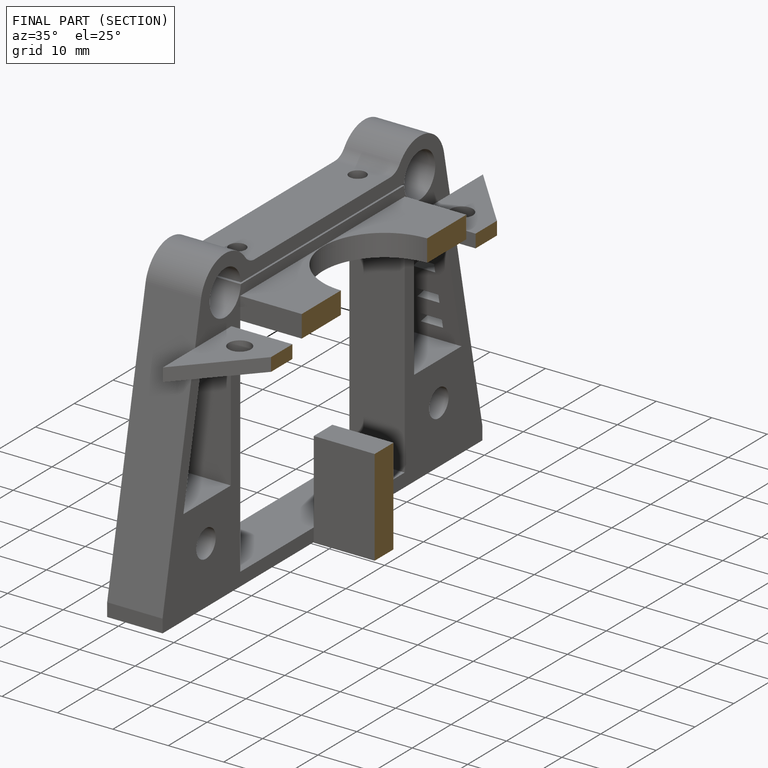
[diagram: finished part — half-section view (interior)]
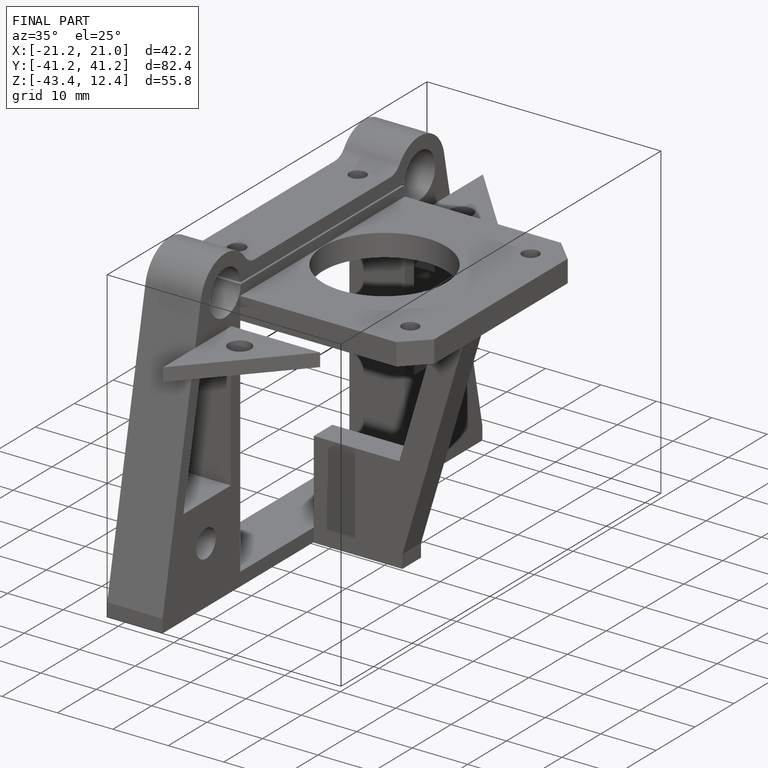
[diagram: finished part — iso view with bounding-box wireframe]
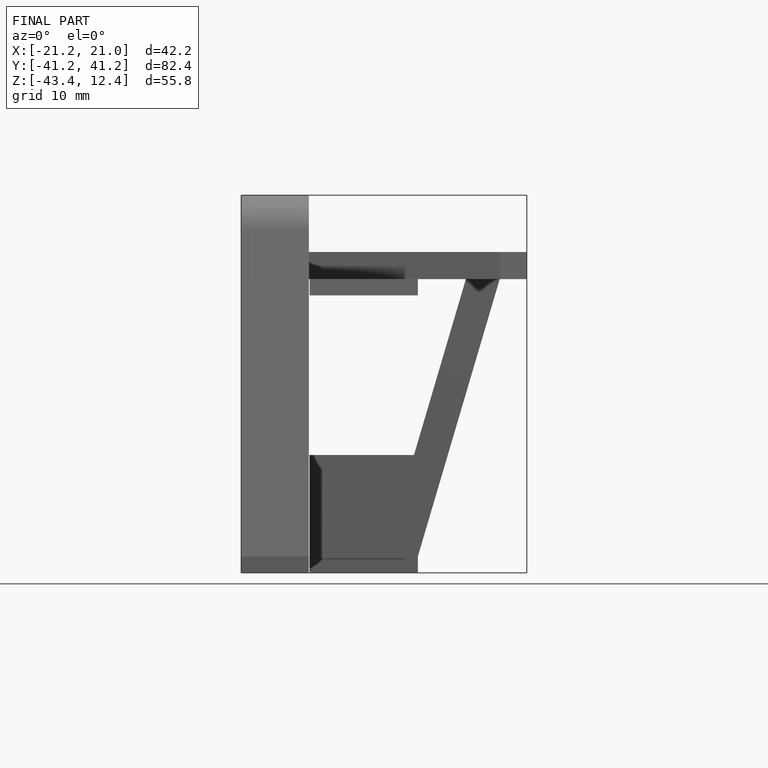
[diagram: finished part — front view with bounding-box wireframe]
